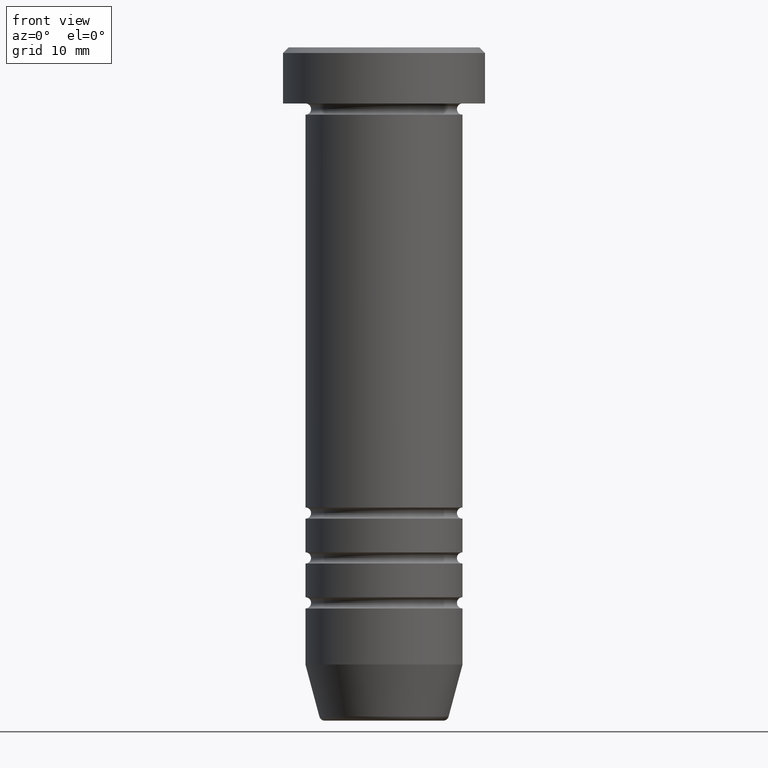
[diagram: clean part render]
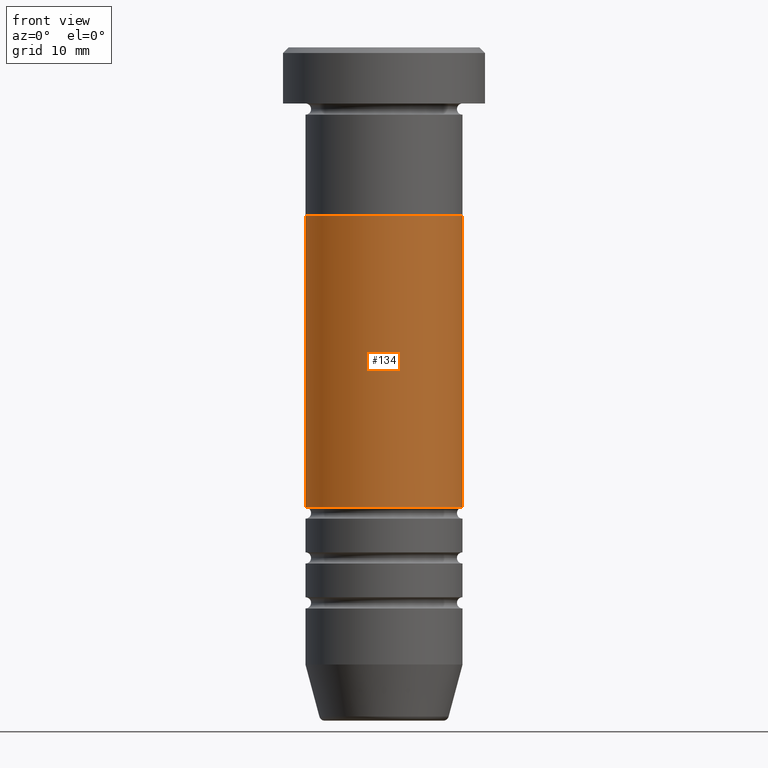
[diagram: same view with one face highlighted and labeled with its STEP entity id]
A machine part, front view. The second image highlights one B-rep face of the part: STEP entity #134.
In plain terms, the highlighted cylindrical surface (partial cylindrical patch) has radius 7 mm, axis along (-0, -0, 1).
Its self-contained STEP definition (entity closure, byte-faithful):
#7 = CARTESIAN_POINT ( 'NONE',  ( 6.999999999999996447, 0.000000000000000000, 0.000000000000000000 ) ) ;
#14 = CARTESIAN_POINT ( 'NONE',  ( 6.999999999999992895, 0.000000000000000000, -41.00000000000000711 ) ) ;
#32 = LINE ( 'NONE', #345, #859 ) ;
#48 = VERTEX_POINT ( 'NONE', #182 ) ;
#59 = CARTESIAN_POINT ( 'NONE',  ( -7.000000000000000000, 8.572527594031472204E-16, -15.00000000000000000 ) ) ;
#111 = AXIS2_PLACEMENT_3D ( 'NONE', #884, #876, #380 ) ;
#116 = EDGE_LOOP ( 'NONE', ( #422, #203, #1006, #251 ) ) ;
#134 = ADVANCED_FACE ( 'NONE', ( #144 ), #891, .T. ) ;
#144 = FACE_OUTER_BOUND ( 'NONE', #116, .T. ) ;
#178 = DIRECTION ( 'NONE',  ( -0.000000000000000000, -0.000000000000000000, 1.000000000000000000 ) ) ;
#182 = CARTESIAN_POINT ( 'NONE',  ( -6.999999999999992895, 8.572527594031466287E-16, -41.00000000000000711 ) ) ;
#187 = LINE ( 'NONE', #7, #725 ) ;
#196 = DIRECTION ( 'NONE',  ( 1.000000000000000000, 0.000000000000000000, 0.000000000000000000 ) ) ;
#203 = ORIENTED_EDGE ( 'NONE', *, *, #415, .T. ) ;
#251 = ORIENTED_EDGE ( 'NONE', *, *, #262, .F. ) ;
#258 = CARTESIAN_POINT ( 'NONE',  ( 0.000000000000000000, 0.000000000000000000, -41.00000000000000711 ) ) ;
#262 = EDGE_CURVE ( 'NONE', #775, #796, #787, .T. ) ;
#331 = EDGE_CURVE ( 'NONE', #48, #775, #32, .T. ) ;
#338 = DIRECTION ( 'NONE',  ( -0.000000000000000000, -0.000000000000000000, 1.000000000000000000 ) ) ;
#345 = CARTESIAN_POINT ( 'NONE',  ( -6.999999999999996447, 8.572527594031468259E-16, 0.000000000000000000 ) ) ;
#361 = AXIS2_PLACEMENT_3D ( 'NONE', #258, #178, #585 ) ;
#367 = DIRECTION ( 'NONE',  ( -0.000000000000000000, -0.000000000000000000, 1.000000000000000000 ) ) ;
#380 = DIRECTION ( 'NONE',  ( 1.000000000000000000, 0.000000000000000000, 0.000000000000000000 ) ) ;
#404 = EDGE_CURVE ( 'NONE', #638, #796, #187, .T. ) ;
#415 = EDGE_CURVE ( 'NONE', #48, #638, #845, .T. ) ;
#422 = ORIENTED_EDGE ( 'NONE', *, *, #331, .F. ) ;
#454 = CARTESIAN_POINT ( 'NONE',  ( 7.000000000000000000, 0.000000000000000000, -15.00000000000000000 ) ) ;
#511 = DIRECTION ( 'NONE',  ( -0.000000000000000000, -0.000000000000000000, 1.000000000000000000 ) ) ;
#585 = DIRECTION ( 'NONE',  ( 1.000000000000000000, 0.000000000000000000, 0.000000000000000000 ) ) ;
#638 = VERTEX_POINT ( 'NONE', #14 ) ;
#657 = CARTESIAN_POINT ( 'NONE',  ( 0.000000000000000000, 0.000000000000000000, -15.00000000000000000 ) ) ;
#724 = AXIS2_PLACEMENT_3D ( 'NONE', #657, #511, #196 ) ;
#725 = VECTOR ( 'NONE', #338, 1000.000000000000000 ) ;
#775 = VERTEX_POINT ( 'NONE', #59 ) ;
#787 = CIRCLE ( 'NONE', #724, 7.000000000000000000 ) ;
#796 = VERTEX_POINT ( 'NONE', #454 ) ;
#845 = CIRCLE ( 'NONE', #361, 6.999999999999992895 ) ;
#859 = VECTOR ( 'NONE', #367, 1000.000000000000000 ) ;
#876 = DIRECTION ( 'NONE',  ( -0.000000000000000000, -0.000000000000000000, 1.000000000000000000 ) ) ;
#884 = CARTESIAN_POINT ( 'NONE',  ( 0.000000000000000000, 0.000000000000000000, 0.000000000000000000 ) ) ;
#891 = CYLINDRICAL_SURFACE ( 'NONE', #111, 6.999999999999996447 ) ;
#1006 = ORIENTED_EDGE ( 'NONE', *, *, #404, .T. ) ;